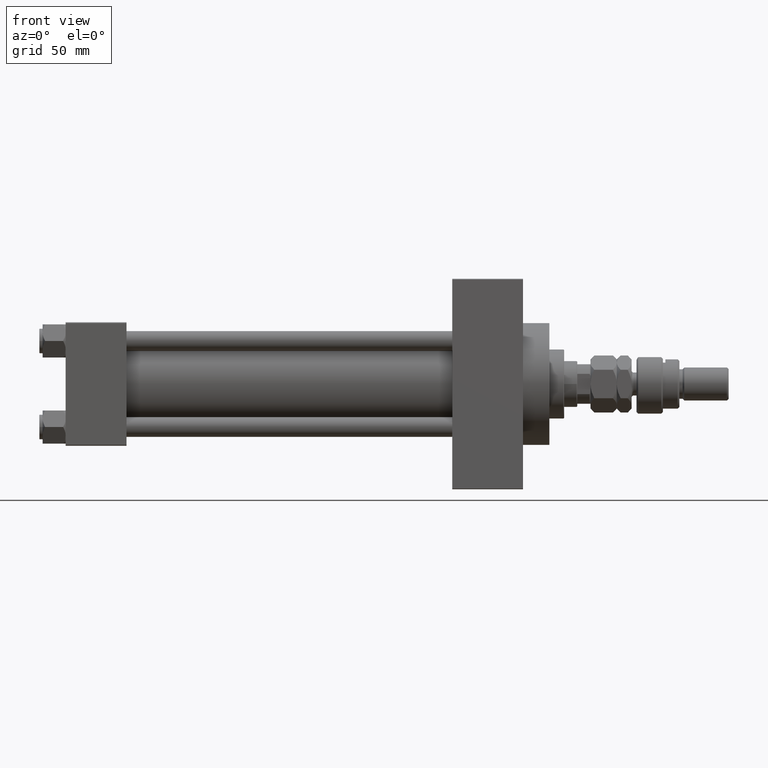
[diagram: clean part render]
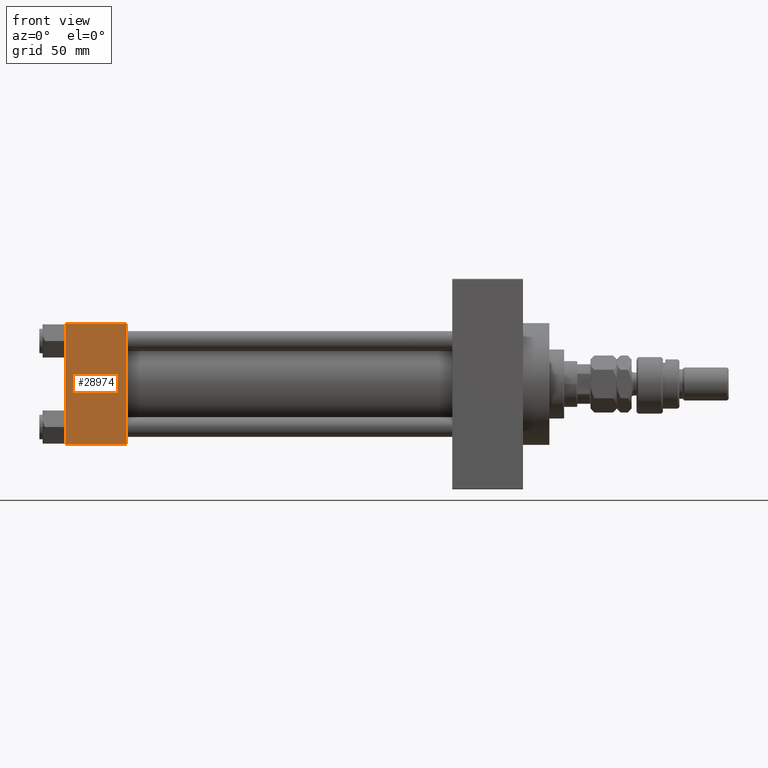
[diagram: same view with one face highlighted and labeled with its STEP entity id]
A machine part, front view. The second image highlights one B-rep face of the part: STEP entity #28974.
In plain terms, the highlighted planar face has unit normal (0, 1, 0).
Its self-contained STEP definition (entity closure, byte-faithful):
#215 = CARTESIAN_POINT ( 'NONE',  ( 37.00000000000000000, -37.50000000000000711, 37.49999999999999289 ) ) ;
#1936 = VERTEX_POINT ( 'NONE', #40916 ) ;
#4280 = DIRECTION ( 'NONE',  ( 0.000000000000000000, -9.251858538542971581E-17, 1.000000000000000000 ) ) ;
#6698 = ORIENTED_EDGE ( 'NONE', *, *, #28035, .T. ) ;
#6929 = VECTOR ( 'NONE', #44937, 1000.000000000000000 ) ;
#8934 = CARTESIAN_POINT ( 'NONE',  ( 0.000000000000000000, -37.50000000000000711, 36.99999999999999289 ) ) ;
#9194 = EDGE_CURVE ( 'NONE', #12321, #1936, #38300, .T. ) ;
#12321 = VERTEX_POINT ( 'NONE', #8934 ) ;
#13559 = ORIENTED_EDGE ( 'NONE', *, *, #9194, .T. ) ;
#15425 = CARTESIAN_POINT ( 'NONE',  ( 37.00000000000000000, -37.50000000000000711, 36.99999999999999289 ) ) ;
#15457 = DIRECTION ( 'NONE',  ( -0.000000000000000000, 1.000000000000000000, 9.251858538542971581E-17 ) ) ;
#15690 = EDGE_LOOP ( 'NONE', ( #13559, #6698, #30323, #28870 ) ) ;
#16764 = DIRECTION ( 'NONE',  ( 0.000000000000000000, 9.251858538542971581E-17, -1.000000000000000000 ) ) ;
#17538 = VECTOR ( 'NONE', #16764, 1000.000000000000000 ) ;
#19925 = AXIS2_PLACEMENT_3D ( 'NONE', #215, #15457, #4280 ) ;
#21569 = LINE ( 'NONE', #22331, #6929 ) ;
#22331 = CARTESIAN_POINT ( 'NONE',  ( 37.00000000000000000, -37.50000000000000000, -37.00000000000003553 ) ) ;
#23633 = LINE ( 'NONE', #39890, #17538 ) ;
#24937 = VERTEX_POINT ( 'NONE', #15425 ) ;
#27401 = FACE_OUTER_BOUND ( 'NONE', #15690, .T. ) ;
#28035 = EDGE_CURVE ( 'NONE', #1936, #28297, #21569, .T. ) ;
#28297 = VERTEX_POINT ( 'NONE', #30155 ) ;
#28870 = ORIENTED_EDGE ( 'NONE', *, *, #33768, .T. ) ;
#28974 = ADVANCED_FACE ( 'NONE', ( #27401 ), #50283, .F. ) ;
#29486 = DIRECTION ( 'NONE',  ( 0.000000000000000000, 9.251858538542971581E-17, -1.000000000000000000 ) ) ;
#30069 = EDGE_CURVE ( 'NONE', #24937, #28297, #23633, .T. ) ;
#30155 = CARTESIAN_POINT ( 'NONE',  ( 37.00000000000000000, -37.50000000000000000, -37.00000000000003553 ) ) ;
#30323 = ORIENTED_EDGE ( 'NONE', *, *, #30069, .F. ) ;
#32654 = CARTESIAN_POINT ( 'NONE',  ( 37.00000000000000000, -37.50000000000000711, 36.99999999999999289 ) ) ;
#33102 = VECTOR ( 'NONE', #43075, 1000.000000000000000 ) ;
#33768 = EDGE_CURVE ( 'NONE', #24937, #12321, #35951, .T. ) ;
#35951 = LINE ( 'NONE', #32654, #33102 ) ;
#36882 = VECTOR ( 'NONE', #29486, 1000.000000000000000 ) ;
#38300 = LINE ( 'NONE', #48791, #36882 ) ;
#39890 = CARTESIAN_POINT ( 'NONE',  ( 37.00000000000000000, -37.50000000000000711, 37.49999999999999289 ) ) ;
#40916 = CARTESIAN_POINT ( 'NONE',  ( 0.000000000000000000, -37.50000000000000000, -37.00000000000003553 ) ) ;
#43075 = DIRECTION ( 'NONE',  ( -1.000000000000000000, 0.000000000000000000, 0.000000000000000000 ) ) ;
#44937 = DIRECTION ( 'NONE',  ( 1.000000000000000000, 0.000000000000000000, 0.000000000000000000 ) ) ;
#48791 = CARTESIAN_POINT ( 'NONE',  ( 0.000000000000000000, -37.50000000000000711, 37.49999999999999289 ) ) ;
#50283 = PLANE ( 'NONE',  #19925 ) ;